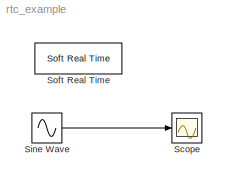
MODEL rtc_example
KIND model
BLOCK [Scope] Scope
  DataFormat = Array
  Floating = off
  LimitDataPoints = off
  NumInputPorts = 1
  Ports = [1]
  SID = 2
  SampleTime = 0
  TickLabels = on
  TimeRange = 10
  YMax = 1
  YMin = -1
BLOCK [Sin] Sine Wave
  Amplitude = 1
  Bias = 0
  Frequency = 1
  Offset = 0
  Phase = 0
  Ports = [0, 1]
  SID = 3
  SampleTime = 0
  Samples = 10
BLOCK [Reference] Soft Real Time  REF=utility/Soft Real Time  (lib defined in slx_8818c3a16fdf)
  Ports = []
  SID = 14
  SourceBlock = utility/Soft Real Time
  x = 1
LINE Sine Wave:1 -> Scope:1
